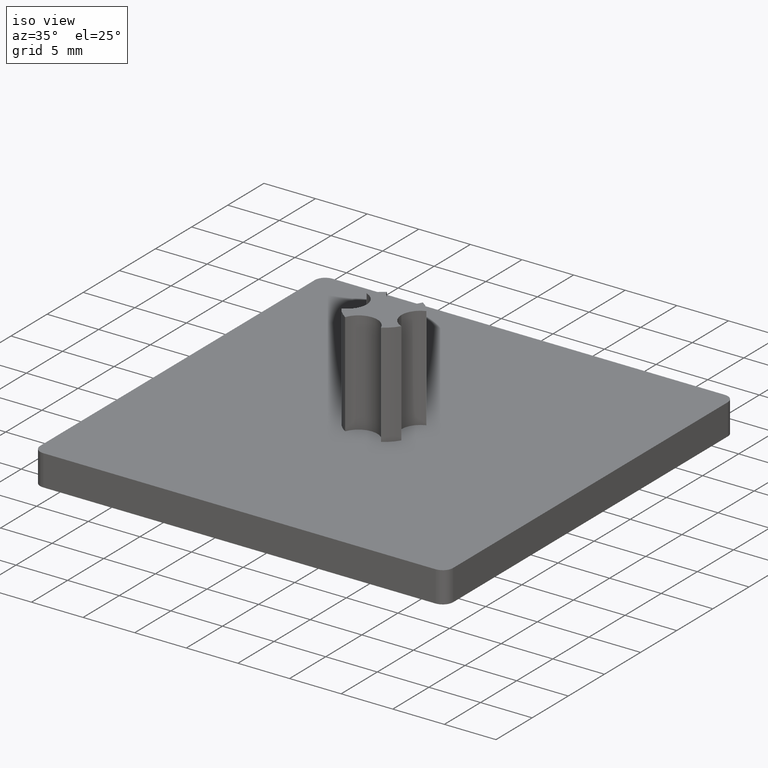
[diagram: clean part render]
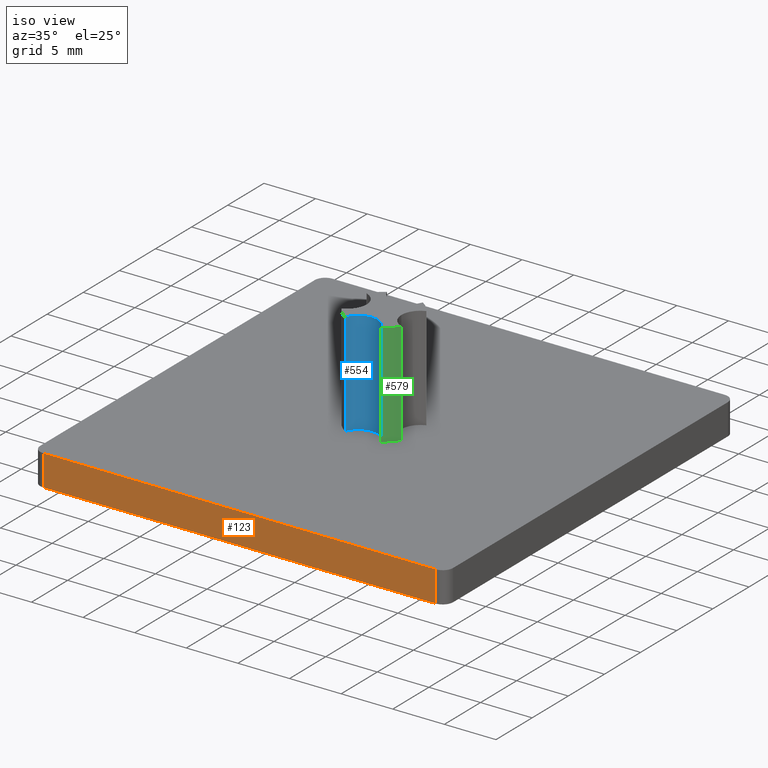
[diagram: same view with three faces highlighted in distinct colors, each labeled with its STEP entity id]
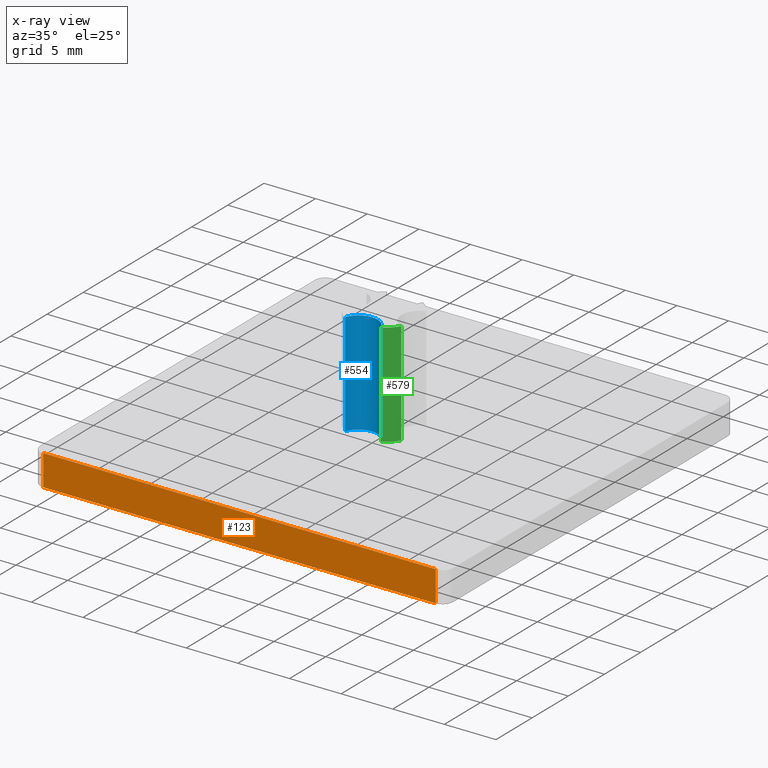
[diagram: x-ray of the same camera — body ghosted, the three highlighted faces saturated]
A machine part, iso view with three faces highlighted in distinct colors.
The next image is the same camera in x-ray (body ghosted, the three faces saturated) — at least one of them is partly hidden behind the body in this view.
Their STEP definitions:

[orange] entity #123 — the highlighted planar face has unit normal (0, 1, 0).
#84=CARTESIAN_POINT('',(-47.409734513273300,-28.350442477875610,-0.150000000000000));
#85=DIRECTION('',(0.0,1.0,0.0));
#86=DIRECTION('',(0.0,0.0,1.0));
#87=AXIS2_PLACEMENT_3D('',#84,#85,#86);
#88=PLANE('',#87);
#89=CARTESIAN_POINT('',(-45.509734513273301,-28.350442477875610,0.0));
#90=VERTEX_POINT('',#89);
#91=CARTESIAN_POINT('',(-7.509734513273324,-28.350442477875610,0.0));
#92=VERTEX_POINT('',#91);
#93=CARTESIAN_POINT('',(-45.509734513273301,-28.350442477875610,0.0));
#94=DIRECTION('',(1.0,0.0,0.0));
#95=VECTOR('',#94,37.999999999999979);
#96=LINE('',#93,#95);
#97=EDGE_CURVE('',#90,#92,#96,.T.);
#98=ORIENTED_EDGE('',*,*,#97,.T.);
#99=CARTESIAN_POINT('',(-7.509734513273324,-28.350442477875610,3.0));
#100=VERTEX_POINT('',#99);
#101=CARTESIAN_POINT('',(-7.509734513273324,-28.350442477875610,0.0));
#102=DIRECTION('',(0.0,0.0,1.0));
#103=VECTOR('',#102,3.0);
#104=LINE('',#101,#103);
#105=EDGE_CURVE('',#92,#100,#104,.T.);
#106=ORIENTED_EDGE('',*,*,#105,.T.);
#107=CARTESIAN_POINT('',(-45.509734513273301,-28.350442477875610,3.0));
#108=VERTEX_POINT('',#107);
#109=CARTESIAN_POINT('',(-45.509734513273301,-28.350442477875610,3.0));
#110=DIRECTION('',(1.0,0.0,0.0));
#111=VECTOR('',#110,37.999999999999979);
#112=LINE('',#109,#111);
#113=EDGE_CURVE('',#108,#100,#112,.T.);
#114=ORIENTED_EDGE('',*,*,#113,.F.);
#115=CARTESIAN_POINT('',(-45.509734513273301,-28.350442477875610,3.0));
#116=DIRECTION('',(0.0,0.0,-1.0));
#117=VECTOR('',#116,3.0);
#118=LINE('',#115,#117);
#119=EDGE_CURVE('',#108,#90,#118,.T.);
#120=ORIENTED_EDGE('',*,*,#119,.T.);
#121=EDGE_LOOP('',(#98,#106,#114,#120));
#122=FACE_OUTER_BOUND('',#121,.T.);
#123=ADVANCED_FACE('',(#122),#88,.F.);

[blue] entity #554 — the highlighted cylindrical surface (edge-blend (fillet) strip) has radius 1.85 mm, axis along (0, 0, -1).
#262=CARTESIAN_POINT('',(-24.774914637897208,-11.245442477875608,3.0));
#263=VERTEX_POINT('',#262);
#271=CARTESIAN_POINT('',(-28.244554388649441,-11.245442477875613,3.0));
#272=VERTEX_POINT('',#271);
#273=CARTESIAN_POINT('',(-26.509734513273326,-11.888015430932322,3.0));
#274=DIRECTION('',(0.0,0.0,-1.0));
#275=DIRECTION('',(0.0,-1.0,0.0));
#276=AXIS2_PLACEMENT_3D('',#273,#274,#275);
#277=CIRCLE('',#276,1.850000000000004);
#278=EDGE_CURVE('',#272,#263,#277,.T.);
#511=CARTESIAN_POINT('',(-28.244554388649441,-11.245442477875613,13.0));
#512=VERTEX_POINT('',#511);
#513=CARTESIAN_POINT('',(-28.244554388649441,-11.245442477875613,13.0));
#514=DIRECTION('',(0.0,0.0,-1.0));
#515=VECTOR('',#514,10.0);
#516=LINE('',#513,#515);
#517=EDGE_CURVE('',#512,#272,#516,.T.);
#530=CARTESIAN_POINT('',(-26.509734513273326,-11.888015430932322,13.000000010000001));
#531=DIRECTION('',(0.0,0.0,-1.0));
#532=DIRECTION('',(-1.0,0.0,0.0));
#533=AXIS2_PLACEMENT_3D('',#530,#531,#532);
#534=CYLINDRICAL_SURFACE('',#533,1.850000000000004);
#535=ORIENTED_EDGE('',*,*,#278,.T.);
#536=CARTESIAN_POINT('',(-24.774914637897208,-11.245442477875608,13.0));
#537=VERTEX_POINT('',#536);
#538=CARTESIAN_POINT('',(-24.774914637897208,-11.245442477875608,13.0));
#539=DIRECTION('',(0.0,0.0,-1.0));
#540=VECTOR('',#539,10.0);
#541=LINE('',#538,#540);
#542=EDGE_CURVE('',#537,#263,#541,.T.);
#543=ORIENTED_EDGE('',*,*,#542,.F.);
#544=CARTESIAN_POINT('',(-26.509734513273326,-11.888015430932322,13.0));
#545=DIRECTION('',(0.0,0.0,-1.0));
#546=DIRECTION('',(0.0,-1.0,0.0));
#547=AXIS2_PLACEMENT_3D('',#544,#545,#546);
#548=CIRCLE('',#547,1.850000000000004);
#549=EDGE_CURVE('',#512,#537,#548,.T.);
#550=ORIENTED_EDGE('',*,*,#549,.F.);
#551=ORIENTED_EDGE('',*,*,#517,.T.);
#552=EDGE_LOOP('',(#535,#543,#550,#551));
#553=FACE_OUTER_BOUND('',#552,.T.);
#554=ADVANCED_FACE('',(#553),#534,.F.);

[green] entity #579 — the highlighted cylindrical surface (partial cylindrical patch) has radius 3.375 mm, axis along (0, 0, -1).
#253=CARTESIAN_POINT('',(-23.614734513273326,-10.085262353251728,3.0));
#254=VERTEX_POINT('',#253);
#262=CARTESIAN_POINT('',(-24.774914637897208,-11.245442477875608,3.0));
#263=VERTEX_POINT('',#262);
#264=CARTESIAN_POINT('',(-26.509734513273326,-8.350442477875610,3.0));
#265=DIRECTION('',(0.0,0.0,1.0));
#266=DIRECTION('',(0.0,1.0,0.0));
#267=AXIS2_PLACEMENT_3D('',#264,#265,#266);
#268=CIRCLE('',#267,3.374999999999999);
#269=EDGE_CURVE('',#263,#254,#268,.T.);
#536=CARTESIAN_POINT('',(-24.774914637897208,-11.245442477875608,13.0));
#537=VERTEX_POINT('',#536);
#538=CARTESIAN_POINT('',(-24.774914637897208,-11.245442477875608,13.0));
#539=DIRECTION('',(0.0,0.0,-1.0));
#540=VECTOR('',#539,10.0);
#541=LINE('',#538,#540);
#542=EDGE_CURVE('',#537,#263,#541,.T.);
#555=CARTESIAN_POINT('',(-26.509734513273326,-8.350442477875610,13.000000010000001));
#556=DIRECTION('',(0.0,0.0,-1.0));
#557=DIRECTION('',(-1.0,0.0,0.0));
#558=AXIS2_PLACEMENT_3D('',#555,#556,#557);
#559=CYLINDRICAL_SURFACE('',#558,3.375000000000000);
#560=ORIENTED_EDGE('',*,*,#269,.T.);
#561=CARTESIAN_POINT('',(-23.614734513273326,-10.085262353251728,13.0));
#562=VERTEX_POINT('',#561);
#563=CARTESIAN_POINT('',(-23.614734513273326,-10.085262353251728,13.0));
#564=DIRECTION('',(0.0,0.0,-1.0));
#565=VECTOR('',#564,10.0);
#566=LINE('',#563,#565);
#567=EDGE_CURVE('',#562,#254,#566,.T.);
#568=ORIENTED_EDGE('',*,*,#567,.F.);
#569=CARTESIAN_POINT('',(-26.509734513273326,-8.350442477875610,13.0));
#570=DIRECTION('',(0.0,0.0,1.0));
#571=DIRECTION('',(0.0,1.0,0.0));
#572=AXIS2_PLACEMENT_3D('',#569,#570,#571);
#573=CIRCLE('',#572,3.374999999999999);
#574=EDGE_CURVE('',#537,#562,#573,.T.);
#575=ORIENTED_EDGE('',*,*,#574,.F.);
#576=ORIENTED_EDGE('',*,*,#542,.T.);
#577=EDGE_LOOP('',(#560,#568,#575,#576));
#578=FACE_OUTER_BOUND('',#577,.T.);
#579=ADVANCED_FACE('',(#578),#559,.T.);